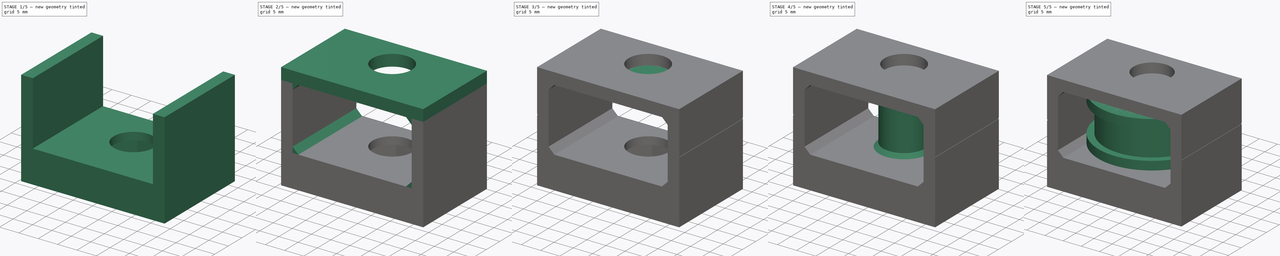
[diagram: build sequence overview — one tinted view per stage of 5, left to right]
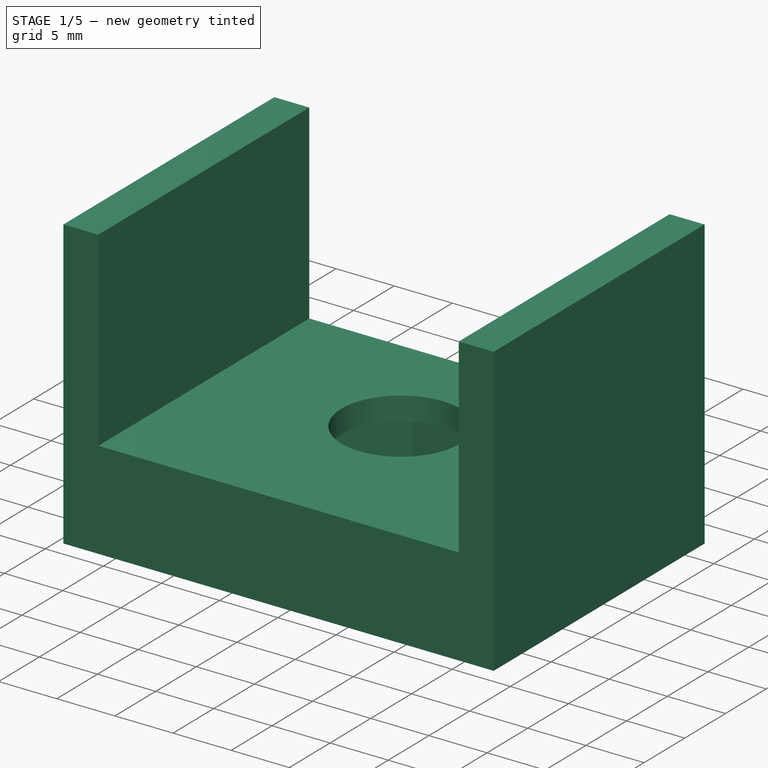
[diagram: stage 1 of 5 — iso view after this stage's code; geometry added in this stage tinted green]
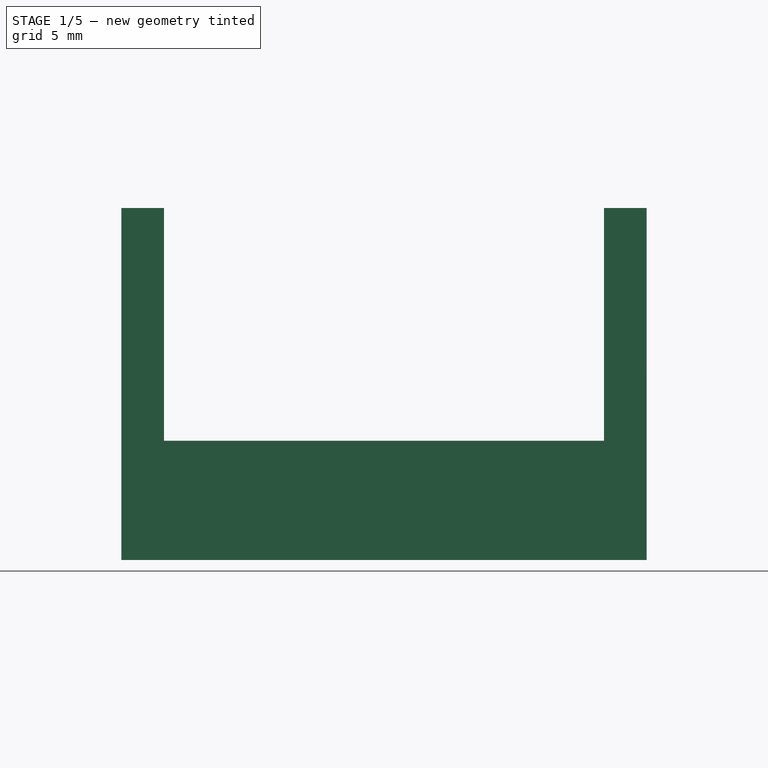
[diagram: stage 1 of 5 — front view after this stage's code; geometry added in this stage tinted green]
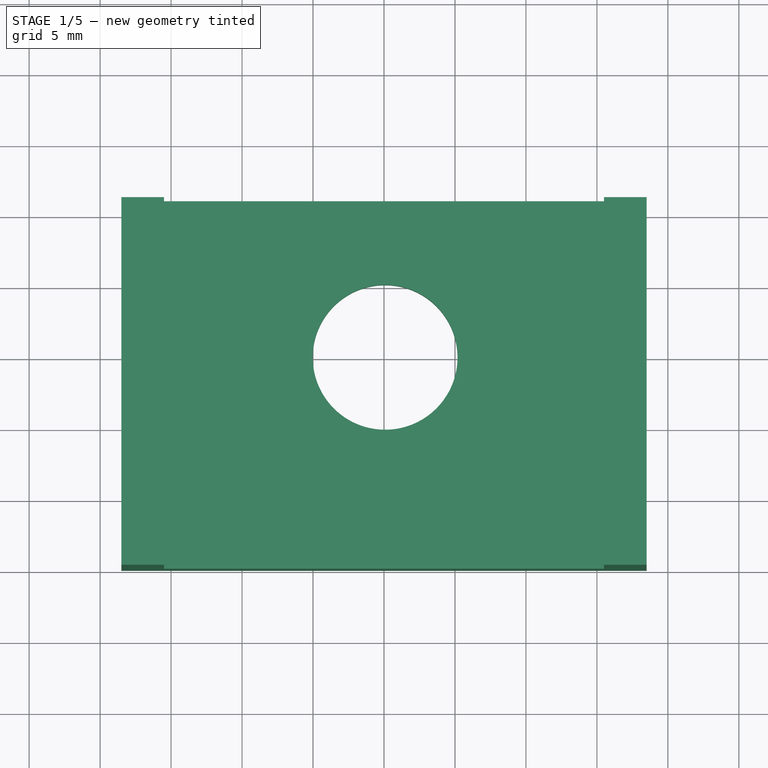
[diagram: stage 1 of 5 — top view after this stage's code; geometry added in this stage tinted green]
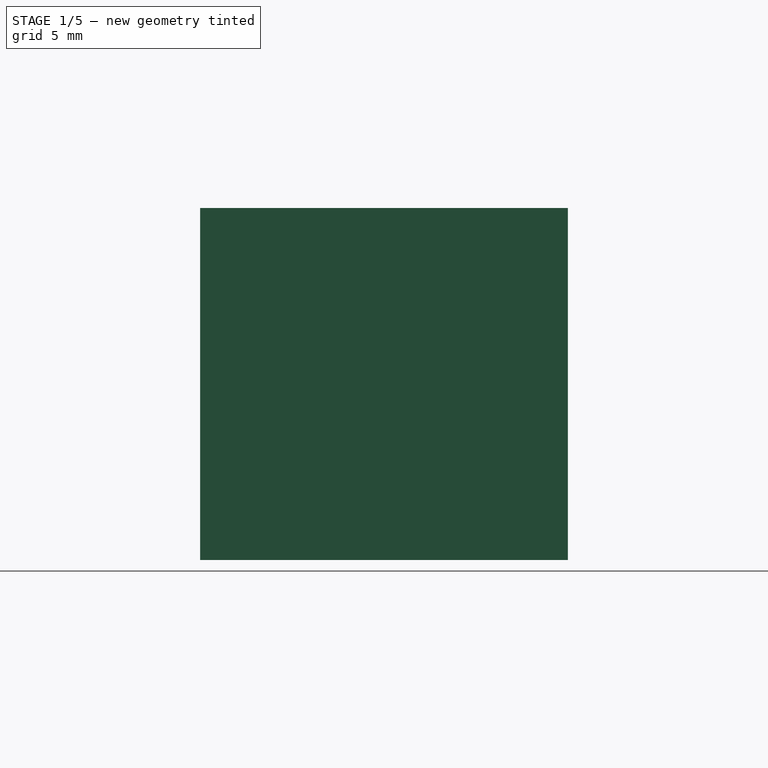
[diagram: stage 1 of 5 — right view after this stage's code; geometry added in this stage tinted green]
FCSTD DOCUMENT  (FreeCAD 0.15R4671 (Git))
Label: Halterung Schrittmotor v4 - Fuehrung
License: All rights reserved
LicenseURL: http://de.wikipedia.org/wiki/Alle_Rechte_vorbehalten
objects: Sketcher::SketchObject×12, PartDesign::Pad×6, PartDesign::Pocket×6, App::DocumentObjectGroup×5, Part::FeaturePython×5, Part::Feature×2, PartDesign::Chamfer×2
note: 45 computed .brp shape members not serialized (recipe doc carries the construction recipe); baked Part::Feature solids carry a one-line shape summary decoded from their .brp

FEATURE [App::DocumentObjectGroup] Gruppe004  label="Links"
  Group = -> [Part__Feature,Part__Feature001,M10_Unterlegscheibe_klein_01,import_01,import_,M10_Unterlegscheibe_klein_,Kugellager_6000_01]
FEATURE [App::DocumentObjectGroup] Gruppe002  label="Fuehrung Zahnriemen"
  Group = -> [Gruppe004]
FEATURE [App::DocumentObjectGroup] Gruppe  label="ext. Bauteile"
  Group = -> [Gruppe001,Gruppe002]
FEATURE [App::DocumentObjectGroup] Gruppe006  label="Aufbau"
FEATURE [Sketcher::SketchObject] Sketch
  sketch-geometry (4):
    g0: LineSegment StartX=-18.5 StartY=11 StartZ=0 EndX=18.5 EndY=11 EndZ=0
    g1: LineSegment StartX=18.5 StartY=11 StartZ=0 EndX=18.5 EndY=-14.9 EndZ=0
    g2: LineSegment StartX=18.5 StartY=-14.9 StartZ=0 EndX=-18.5 EndY=-14.9 EndZ=0
    g3: LineSegment StartX=-18.5 StartY=-14.9 StartZ=0 EndX=-18.5 EndY=11 EndZ=0
  constraints (12):
    c: Coincident(g0,g1)
    c: Coincident(g1,g2)
    c: Coincident(g2,g3)
    c: Coincident(g3,g0)
    c: Horizontal(g0)
    c: Horizontal(g2)
    c: Vertical(g1)
    c: Vertical(g3)
    c: Symmetric(g1,g2,g-2)
    c: DistanceY(g0) = 11
    c: DistanceX(g0) = 18.5
    c: DistanceY(g1) = -14.9
FEATURE [PartDesign::Pad] Pad
  Length = 8.4
  Length2 = 100
  Sketch = -> Sketch
  Type = 0
FEATURE [Sketcher::SketchObject] Sketch001
  Placement = pos=(0,0,0) rot=(1,0,0;3.14159rad)
  Support = -> Pad [Face5]
  sketch-geometry (7):
    g0: LineSegment StartX=9.84382 StartY=0 StartZ=0 EndX=4.92191 EndY=8.525 EndZ=0
    g1: LineSegment StartX=4.92191 StartY=8.525 StartZ=0 EndX=-4.92191 EndY=8.525 EndZ=0
    g2: LineSegment StartX=-4.92191 StartY=8.525 StartZ=0 EndX=-9.84382 EndY=0 EndZ=0
    g3: LineSegment StartX=-9.84382 StartY=0 StartZ=0 EndX=-4.92191 EndY=-8.525 EndZ=0
    g4: LineSegment StartX=-4.92191 StartY=-8.525 StartZ=0 EndX=4.92191 EndY=-8.525 EndZ=0
    g5: LineSegment StartX=4.92191 StartY=-8.525 StartZ=0 EndX=9.84382 EndY=0 EndZ=0
    g6: Circle [constr] CenterX=0 CenterY=0 CenterZ=0 NormalX=0 NormalY=0 NormalZ=1 Radius=9.84382
  constraints (16):
    c: Coincident(g0,g1)
    c: Coincident(g1,g2)
    c: Coincident(g2,g3)
    c: Coincident(g3,g4)
    c: Coincident(g4,g5)
    c: Coincident(g5,g0)
    c: Equal(g0, g1-g5) x5
    c: PointOnObject(g0,g6)
    c: PointOnObject(g1,g6)
    c: PointOnObject(g2,g6)
    c: PointOnObject(g3,g6)
    c: PointOnObject(g4,g6)
    c: PointOnObject(g5,g6)
    c: Horizontal(g4)
    c: Coincident(g6,g-1)
    c: Distance(g0,g4) = 17.05
FEATURE [PartDesign::Pocket] Pocket
  Length = 6.4
  Sketch = -> Sketch001
  Type = 0
FEATURE [Sketcher::SketchObject] Sketch002
  Placement = pos=(0,0,6.4) rot=(1,0,0;3.14159rad)
  Support = -> Pocket [Face13]
  sketch-geometry (1):
    g0: Circle CenterX=0.078516 CenterY=0 CenterZ=0 NormalX=0 NormalY=0 NormalZ=1 Radius=5.1
  constraints (2):
    c: PointOnObject(g0,g-1)
    c: Radius(g0) = 5.1
FEATURE [PartDesign::Pocket] Pocket001
  Length = 5
  Sketch = -> Sketch002
  Type = 1
FEATURE [Sketcher::SketchObject] Sketch004
  ExternalGeometry = -> [Pocket001]
  Placement = pos=(0,0,8.4) rot=(0,0,1;0rad)
  Support = -> Pocket001 [Face5]
  sketch-geometry (8):
    g0: LineSegment StartX=-18.5 StartY=11 StartZ=0 EndX=-15.5 EndY=11 EndZ=0
    g1: LineSegment StartX=-15.5 StartY=11 StartZ=0 EndX=-15.5 EndY=-14.9 EndZ=0
    g2: LineSegment StartX=-15.5 StartY=-14.9 StartZ=0 EndX=-18.5 EndY=-14.9 EndZ=0
    g3: LineSegment StartX=-18.5 StartY=-14.9 StartZ=0 EndX=-18.5 EndY=11 EndZ=0
    g4: LineSegment StartX=18.5 StartY=11 StartZ=0 EndX=15.5 EndY=11 EndZ=0
    g5: LineSegment StartX=15.5 StartY=11 StartZ=0 EndX=15.5 EndY=-14.9 EndZ=0
    g6: LineSegment StartX=15.5 StartY=-14.9 StartZ=0 EndX=18.5 EndY=-14.9 EndZ=0
    g7: LineSegment StartX=18.5 StartY=-14.9 StartZ=0 EndX=18.5 EndY=11 EndZ=0
  constraints (22):
    c: Coincident(g0,g1)
    c: Coincident(g1,g2)
    c: Coincident(g2,g3)
    c: Coincident(g3,g0)
    c: Horizontal(g0)
    c: Horizontal(g2)
    c: Vertical(g1)
    c: Vertical(g3)
    c: Coincident(g0,g-4)
    c: Coincident(g4,g5)
    c: Coincident(g5,g6)
    c: Coincident(g6,g7)
    c: Coincident(g7,g4)
    c: Horizontal(g4)
    c: Horizontal(g6)
    c: Vertical(g5)
    c: Vertical(g7)
    c: Coincident(g4,g-3)
    c: Equal(g6,g2)
    c: DistanceX(g6) = 3
    c: Coincident(g-3,g6)
    c: Coincident(g2,g-4)
FEATURE [PartDesign::Pad] Pad001
  Length = 16.4
  Length2 = 100
  Sketch = -> Sketch004
  Type = 0
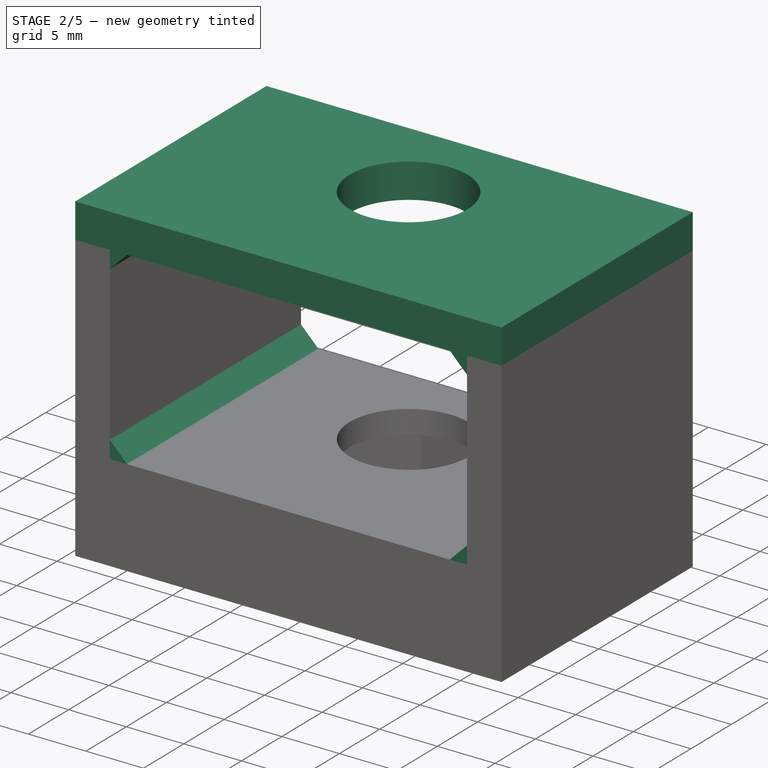
[diagram: stage 2 of 5 — iso view after this stage's code; geometry added in this stage tinted green]
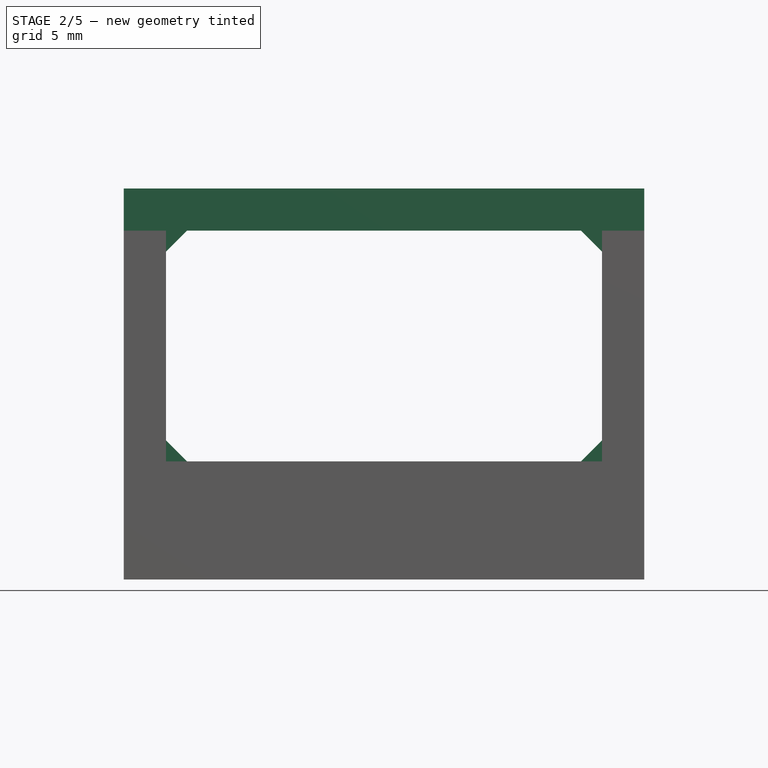
[diagram: stage 2 of 5 — front view after this stage's code; geometry added in this stage tinted green]
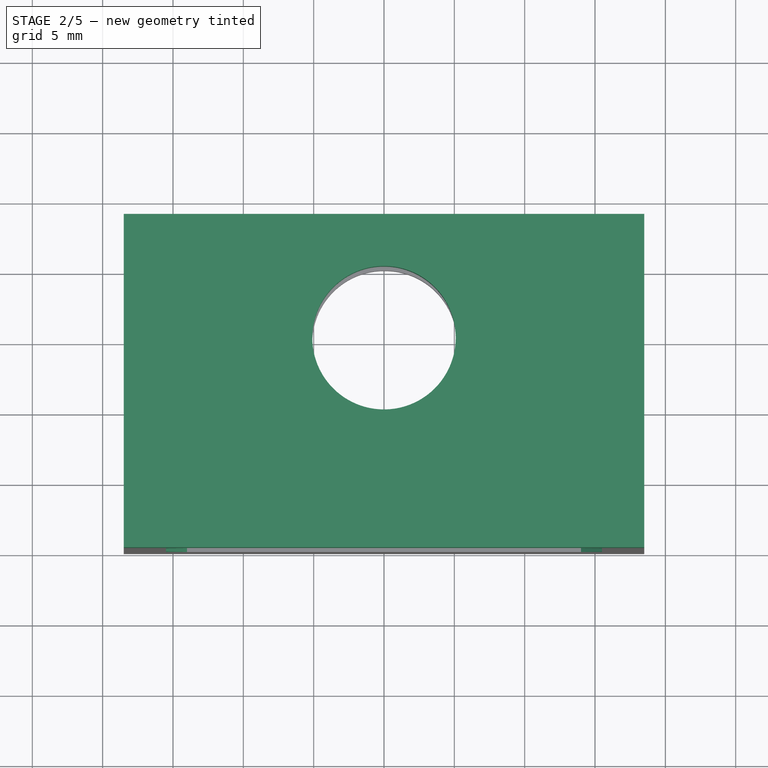
[diagram: stage 2 of 5 — top view after this stage's code; geometry added in this stage tinted green]
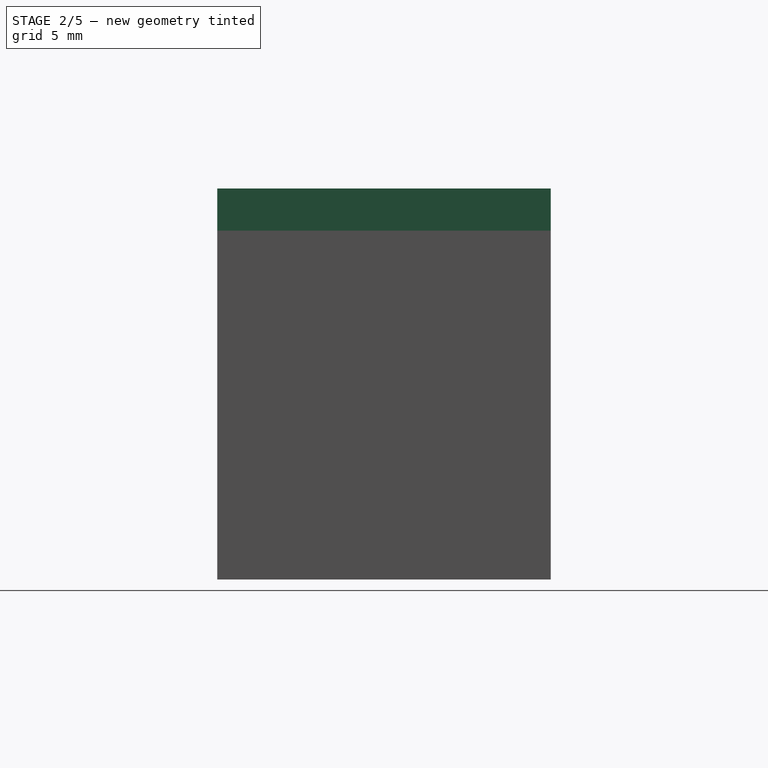
[diagram: stage 2 of 5 — right view after this stage's code; geometry added in this stage tinted green]
FEATURE [Sketcher::SketchObject] Sketch005
  ExternalGeometry = -> [Pad001]
  Placement = pos=(0,0,24.8) rot=(0,0,1;0rad)
  Support = -> Pad001 [Face20]
  sketch-geometry (4):
    g0: LineSegment StartX=-18.5 StartY=11 StartZ=0 EndX=18.5 EndY=11 EndZ=0
    g1: LineSegment StartX=18.5 StartY=11 StartZ=0 EndX=18.5 EndY=-14.9 EndZ=0
    g2: LineSegment StartX=18.5 StartY=-14.9 StartZ=0 EndX=-18.5 EndY=-14.9 EndZ=0
    g3: LineSegment StartX=-18.5 StartY=-14.9 StartZ=0 EndX=-18.5 EndY=11 EndZ=0
  constraints (10):
    c: Coincident(g0,g1)
    c: Coincident(g1,g2)
    c: Coincident(g2,g3)
    c: Coincident(g3,g0)
    c: Horizontal(g0)
    c: Horizontal(g2)
    c: Vertical(g1)
    c: Vertical(g3)
    c: Coincident(g0,g-4)
    c: Coincident(g1,g-3)
FEATURE [PartDesign::Pad] Pad002
  Length = 3
  Length2 = 100
  Sketch = -> Sketch005
  Type = 0
FEATURE [Sketcher::SketchObject] Sketch006
  ExternalGeometry = -> [Pad002]
  Placement = pos=(0,0,6.4) rot=(1,0,0;3.14159rad)
  Support = -> Pad002 [Face19]
  sketch-geometry (1):
    g0: Circle CenterX=0 CenterY=0 CenterZ=0 NormalX=0 NormalY=0 NormalZ=1 Radius=5.1
  constraints (2):
    c: Coincident(g0,g-1)
    c: Equal(g0,g-3)
FEATURE [PartDesign::Pocket] Pocket002
  Length = 5
  Sketch = -> Sketch006
  Type = 1
FEATURE [PartDesign::Chamfer] Chamfer
  Base = -> Pocket002 [Edge38,Edge61,Edge62,Edge39]
  Size = 1.5
FEATURE [Sketcher::SketchObject] Sketch007
  ExternalGeometry = -> [Chamfer]
  Placement = pos=(0,11,0) rot=(0,0.707107,0.707107;3.14159rad)
  Support = -> Chamfer [Face1]
  sketch-geometry (4):
    g0: LineSegment StartX=-18.5 StartY=27.8 StartZ=0 EndX=18.5 EndY=27.8 EndZ=0
    g1: LineSegment StartX=18.5 StartY=27.8 StartZ=0 EndX=18.5 EndY=0 EndZ=0
    g2: LineSegment StartX=18.5 StartY=0 StartZ=0 EndX=-18.5 EndY=0 EndZ=0
    g3: LineSegment StartX=-18.5 StartY=0 StartZ=0 EndX=-18.5 EndY=27.8 EndZ=0
  constraints (10):
    c: Coincident(g0,g1)
    c: Coincident(g1,g2)
    c: Coincident(g2,g3)
    c: Coincident(g3,g0)
    c: Horizontal(g0)
    c: Horizontal(g2)
    c: Vertical(g1)
    c: Vertical(g3)
    c: Coincident(g0,g-3)
    c: Coincident(g1,g-4)
FEATURE [PartDesign::Pocket] Pocket003
  Length = 2.2
  Sketch = -> Sketch007
  Type = 0
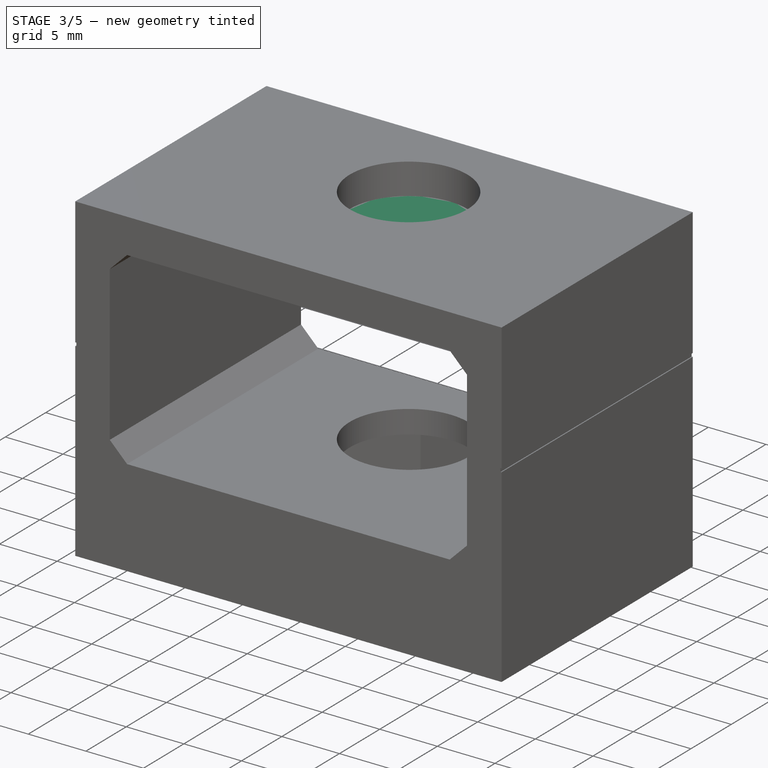
[diagram: stage 3 of 5 — iso view after this stage's code; geometry added in this stage tinted green]
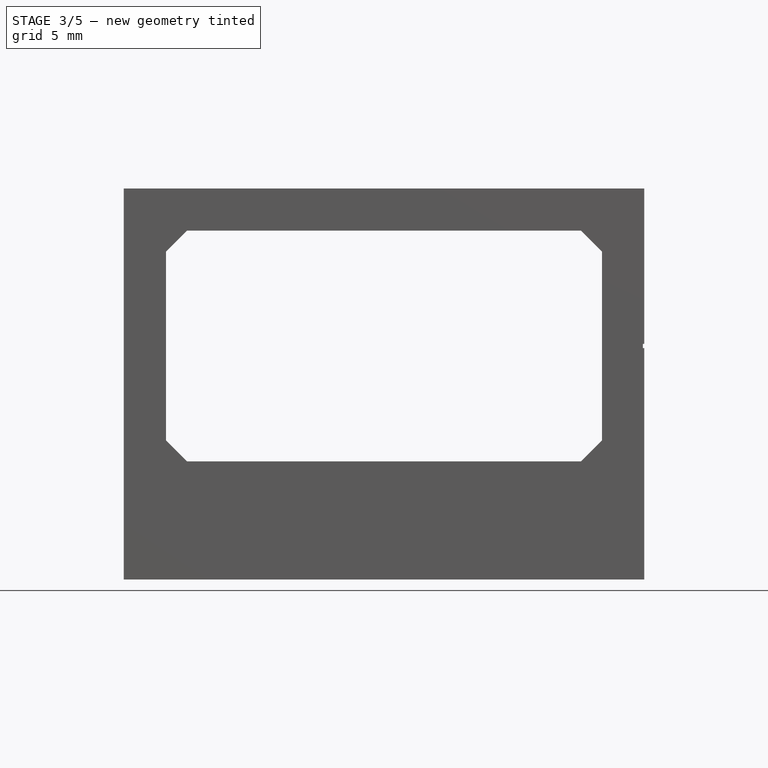
[diagram: stage 3 of 5 — front view after this stage's code; geometry added in this stage tinted green]
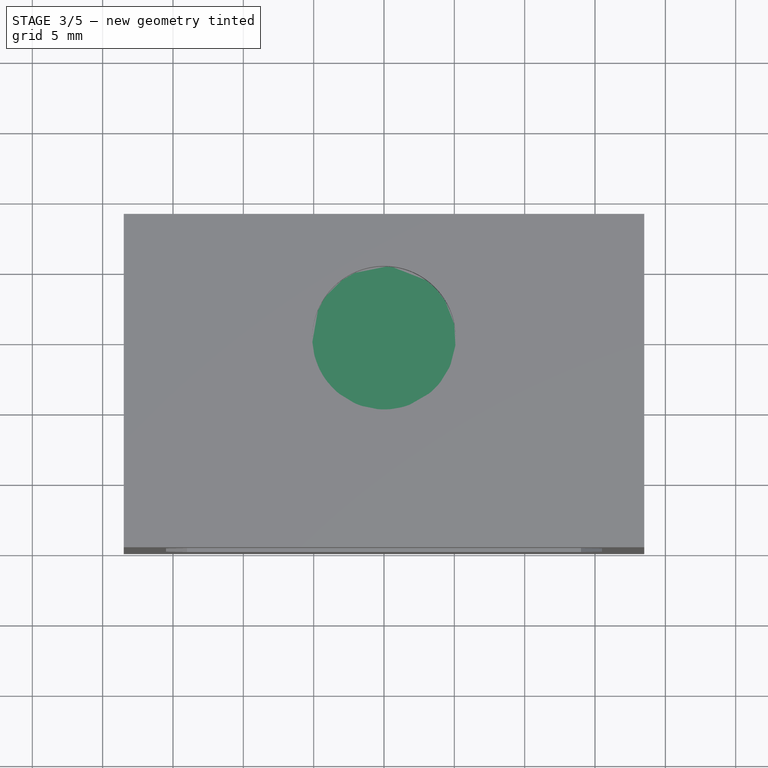
[diagram: stage 3 of 5 — top view after this stage's code; geometry added in this stage tinted green]
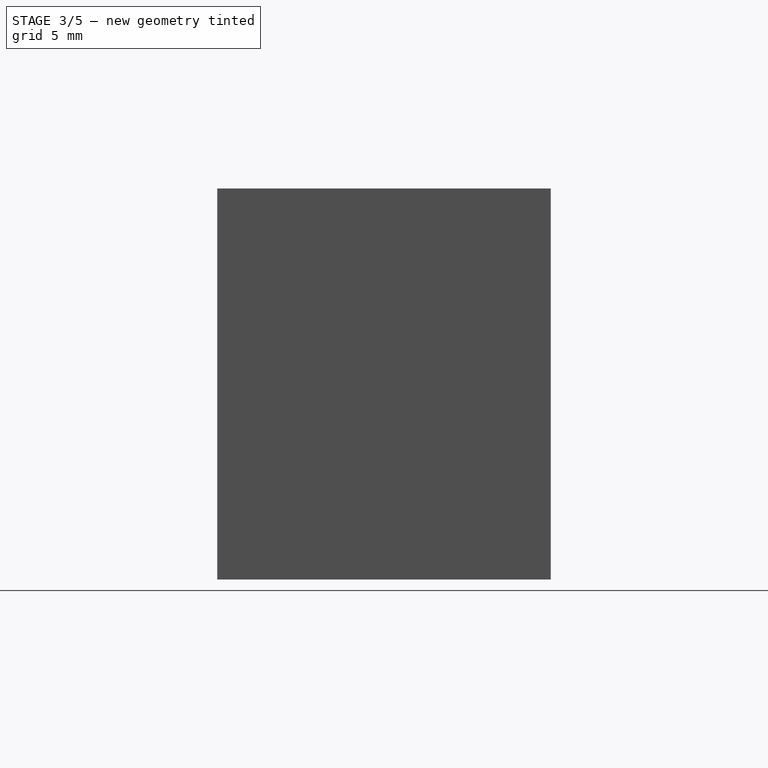
[diagram: stage 3 of 5 — right view after this stage's code; geometry added in this stage tinted green]
FEATURE [Sketcher::SketchObject] Sketch008
  ExternalGeometry = -> [Pocket003]
  Placement = pos=(18.5,0,0) rot=(0.57735,0.57735,0.57735;2.0944rad)
  Support = -> Pocket003 [Face12]
  sketch-geometry (5):
    g0: LineSegment [constr] StartX=-14.9 StartY=16.6 StartZ=0 EndX=8.8 EndY=16.6 EndZ=0
    g1: LineSegment StartX=-14.9 StartY=16.75 StartZ=0 EndX=8.8 EndY=16.75 EndZ=0
    g2: LineSegment StartX=8.8 StartY=16.75 StartZ=0 EndX=8.8 EndY=16.45 EndZ=0
    g3: LineSegment StartX=8.8 StartY=16.45 StartZ=0 EndX=-14.9 EndY=16.45 EndZ=0
    g4: LineSegment StartX=-14.9 StartY=16.45 StartZ=0 EndX=-14.9 EndY=16.75 EndZ=0
  constraints (15):
    c: PointOnObject(g0,g-3)
    c: PointOnObject(g0,g-4)
    c: Symmetric(g-4,g-4,g0)
    c: Coincident(g1,g2)
    c: Coincident(g2,g3)
    c: Coincident(g3,g4)
    c: Coincident(g4,g1)
    c: Horizontal(g1)
    c: Horizontal(g3)
    c: Vertical(g2)
    c: Vertical(g4)
    c: PointOnObject(g1,g-3)
    c: PointOnObject(g2,g-4)
    c: Symmetric(g1,g2,g0)
    c: DistanceY(g2) = -0.3
FEATURE [PartDesign::Pocket] Pocket004
  Length = 0.1
  Sketch = -> Sketch008
  Type = 0
FEATURE [Sketcher::SketchObject] Sketch009
  ExternalGeometry = -> [Pocket004]
  Placement = pos=(-18.5,0,0) rot=(0.57735,-0.57735,-0.57735;2.0944rad)
  Support = -> Pocket004 [Face11]
  sketch-geometry (5):
    g0: LineSegment StartX=-8.5 StartY=16.75 StartZ=0 EndX=14.9 EndY=16.75 EndZ=0
    g1: LineSegment StartX=14.9 StartY=16.75 StartZ=0 EndX=14.9 EndY=16.45 EndZ=0
    g2: LineSegment StartX=14.9 StartY=16.45 StartZ=0 EndX=-8.5 EndY=16.45 EndZ=0
    g3: LineSegment StartX=-8.5 StartY=16.45 StartZ=0 EndX=-8.5 EndY=16.75 EndZ=0
    g4: LineSegment [constr] StartX=-8.5 StartY=16.6 StartZ=0 EndX=14.9 EndY=16.6 EndZ=0
  constraints (12):
    c: Coincident(g0,g1)
    c: Coincident(g1,g2)
    c: Coincident(g2,g3)
    c: Coincident(g3,g0)
    c: Horizontal(g0)
    c: Horizontal(g2)
    c: Vertical(g1)
    c: Vertical(g3)
    c: PointOnObject(g4,g3)
    c: PointOnObject(g4,g1)
    c: Symmetric(g0,g1,g4)
    c: DistanceY(g1) = -0.3
FEATURE [PartDesign::Pocket] Pocket005  label="Fuehrung"
  Length = 0.1
  Sketch = -> Sketch009
  Type = 0
FEATURE [Sketcher::SketchObject] Sketch010
  ExternalGeometry = -> [Pocket005]
  Placement = pos=(0,0,24.8) rot=(1,0,0;3.14159rad)
  Support = -> Pocket005 [Face25]
  sketch-geometry (1):
    g0: Circle CenterX=0 CenterY=0 CenterZ=0 NormalX=0 NormalY=0 NormalZ=1 Radius=5.1
  constraints (2):
    c: Coincident(g0,g-1)
    c: Equal(g0,g-3)
FEATURE [PartDesign::Pad] Pad003
  Length = 0.3
  Length2 = 100
  Reversed = true
  Sketch = -> Sketch010
  Type = 0
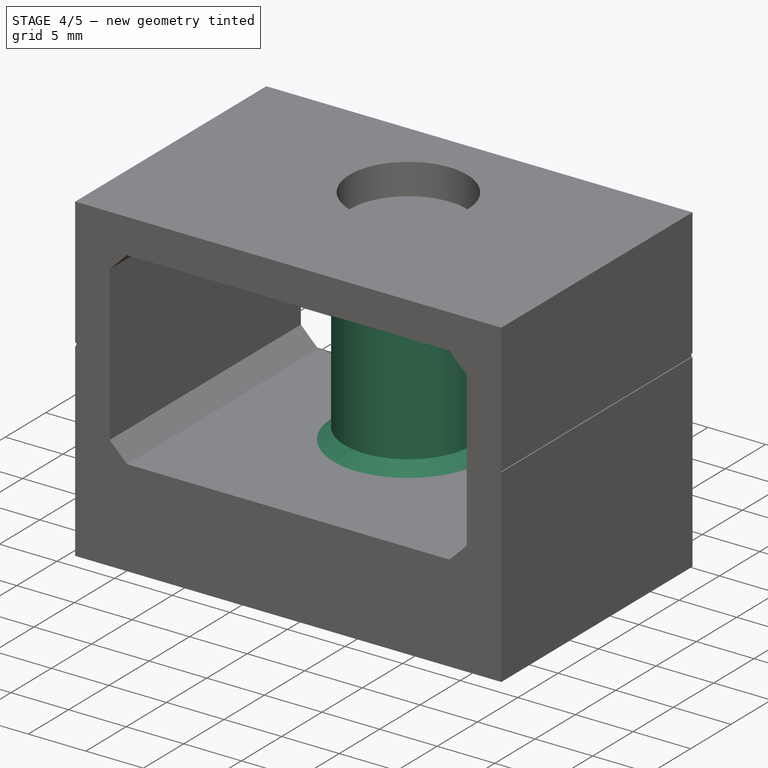
[diagram: stage 4 of 5 — iso view after this stage's code; geometry added in this stage tinted green]
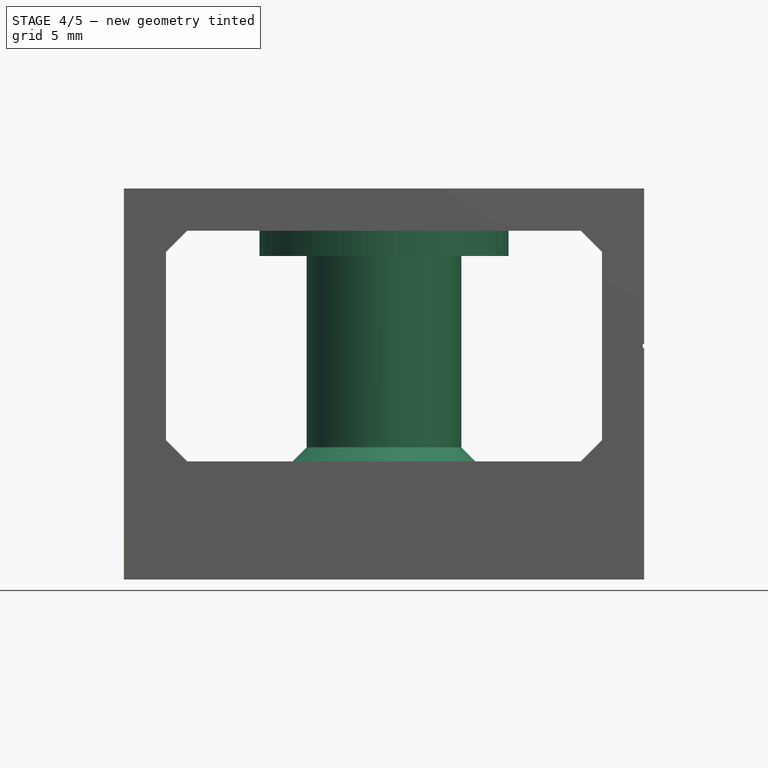
[diagram: stage 4 of 5 — front view after this stage's code; geometry added in this stage tinted green]
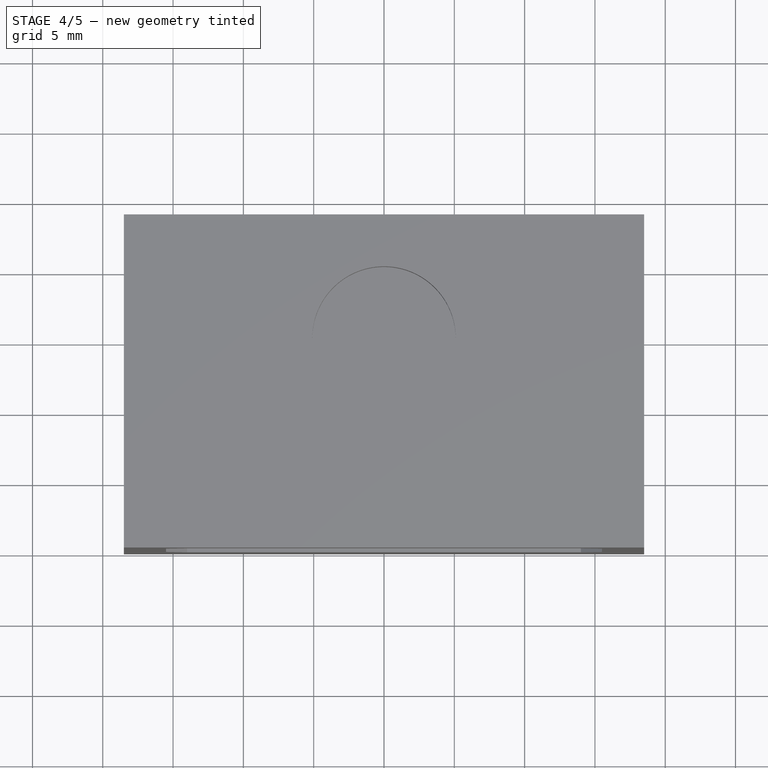
[diagram: stage 4 of 5 — top view after this stage's code; geometry added in this stage tinted green]
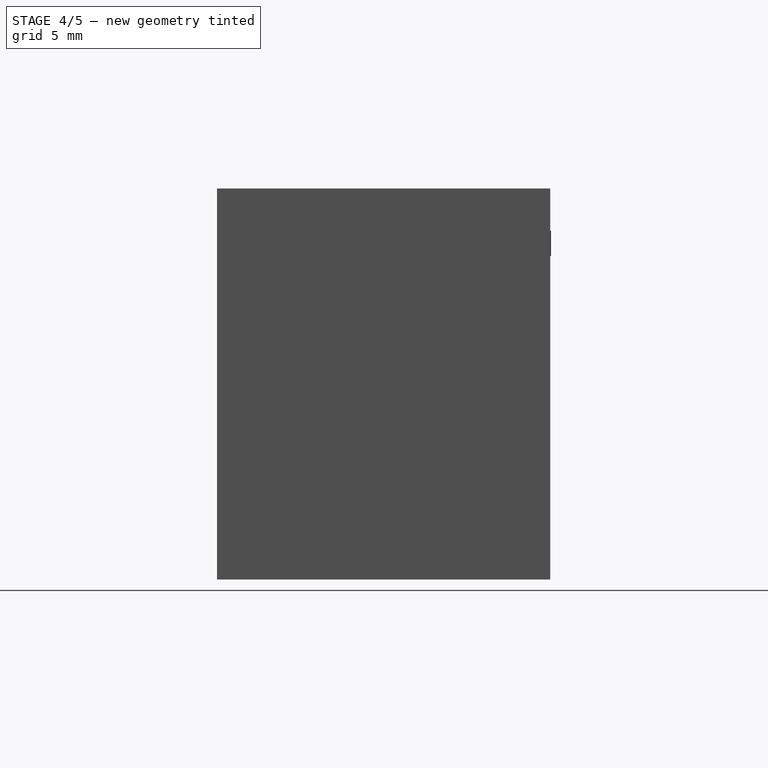
[diagram: stage 4 of 5 — right view after this stage's code; geometry added in this stage tinted green]
FEATURE [Part::FeaturePython] M10_Unterlegscheibe_klein_  # a2plus imported part (geometry in sourceFile) (typed FeaturePython)
  Placement = pos=(0,0,23) rot=(0,0,1;0rad)
  fixedPosition = false
  sourceFile = <userpath>/Documents/WORK/M10 Unterlegscheibe klein.FCStd
  timeLastImport = 1.44881e+09
  updateColors = true
FEATURE [Sketcher::SketchObject] Sketch011
  Placement = pos=(0,0,24.8) rot=(1,0,0;3.14159rad)
  Support = -> Pad003 [Face40]
  sketch-geometry (2):
    g0: Circle CenterX=0 CenterY=0 CenterZ=0 NormalX=0 NormalY=0 NormalZ=1 Radius=5.5
    g1: Circle CenterX=0 CenterY=0 CenterZ=0 NormalX=0 NormalY=0 NormalZ=1 Radius=5.1
  constraints (4):
    c: Coincident(g0,g-1)
    c: Coincident(g-1,g1)
    c: Radius(g1) = 5.1
    c: Radius(g0) = 5.5
FEATURE [PartDesign::Pad] Pad004
  Length = 16.4
  Length2 = 100
  Sketch = -> Sketch011
  Type = 0
FEATURE [Sketcher::SketchObject] Sketch012
  Placement = pos=(0,0,6.4) rot=(1,0,0;3.14159rad)
  Support = -> Pad004 [Face39]
  sketch-geometry (1):
    g0: Circle CenterX=0 CenterY=0 CenterZ=0 NormalX=0 NormalY=0 NormalZ=1 Radius=5.3
  constraints (2):
    c: Coincident(g0,g-1)
    c: Radius(g0) = 5.3
FEATURE [PartDesign::Pad] Pad005
  Length = 0.3
  Length2 = 100
  Reversed = true
  Sketch = -> Sketch012
  Type = 0
FEATURE [PartDesign::Chamfer] Chamfer001
  Base = -> Pad005 [Edge59,Edge73]
  Size = 1
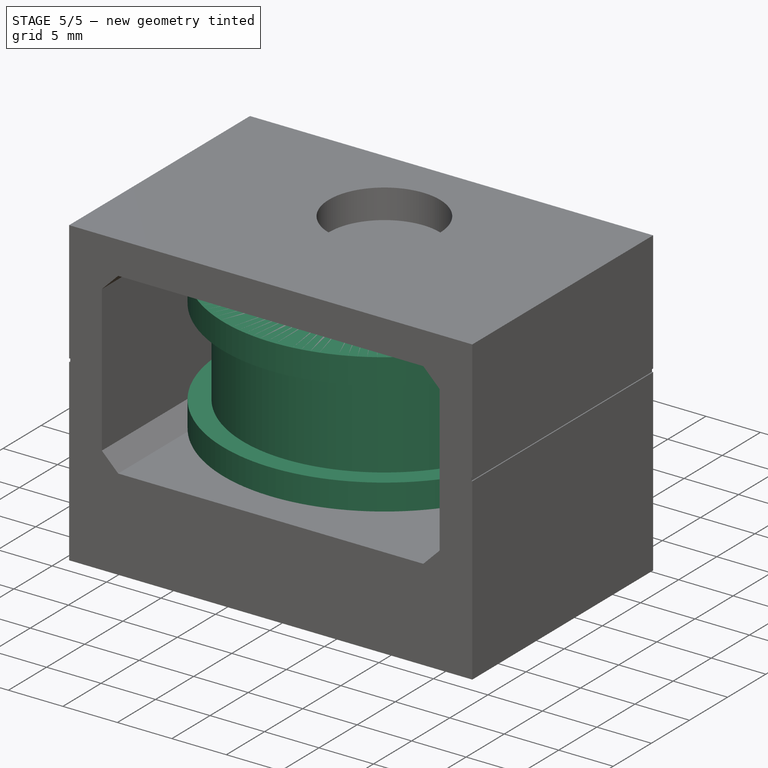
[diagram: stage 5 of 5 — iso view after this stage's code; geometry added in this stage tinted green]
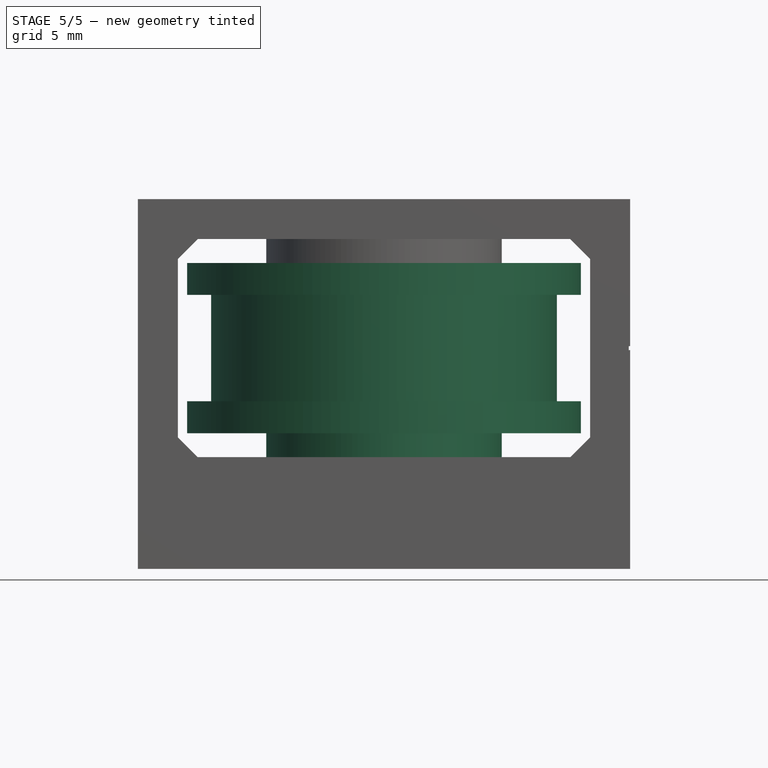
[diagram: stage 5 of 5 — front view after this stage's code; geometry added in this stage tinted green]
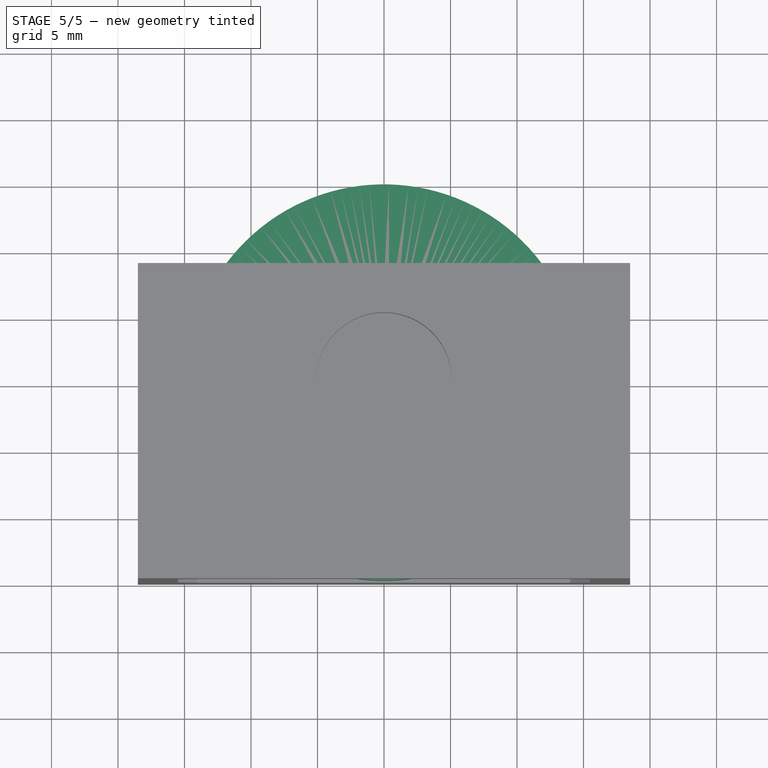
[diagram: stage 5 of 5 — top view after this stage's code; geometry added in this stage tinted green]
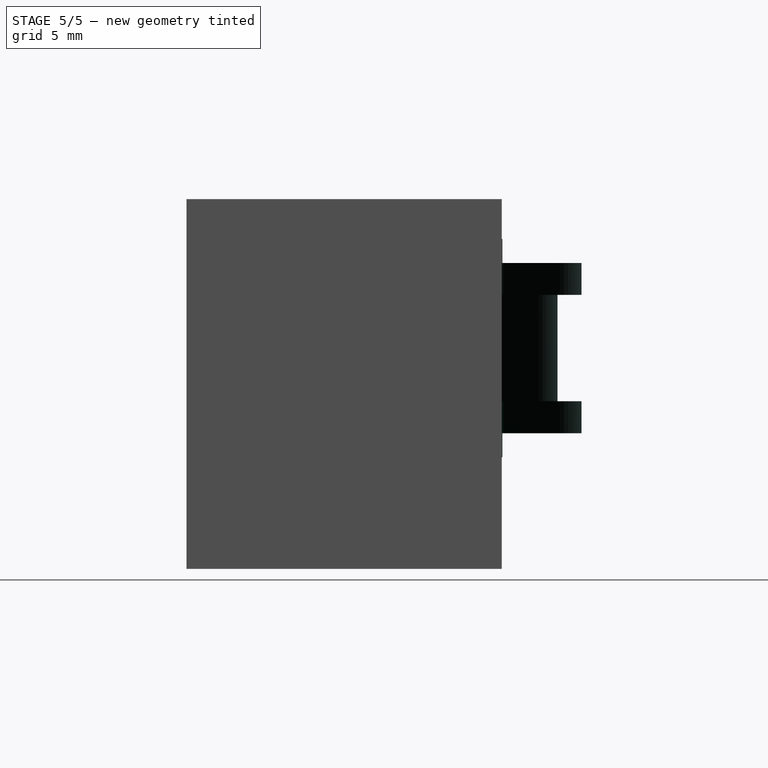
[diagram: stage 5 of 5 — right view after this stage's code; geometry added in this stage tinted green]
FEATURE [App::DocumentObjectGroup] Gruppe001  label="Verschraubung"
FEATURE [Part::Feature] Part__Feature  label="ISO4033-M10_"
  Placement = pos=(0,0,27.8) rot=(0,0,1;0rad)
  shape: bbox 18.48 x 18.48 x 9.3 mm, 25 faces (baked)
FEATURE [Part::Feature] Part__Feature001  label="ISO4017-M10x35_"
  Placement = pos=(0,0,6.4) rot=(1,0,0;3.14159rad)
  shape: bbox 18.48 x 18.48 x 41.4 mm, 22 faces (baked)
FEATURE [Part::FeaturePython] Kugellager_6000_01  # a2plus imported part (geometry in sourceFile) (typed FeaturePython)
  Placement = pos=(0,0,12.6) rot=(0,0,1;0rad)
  fixedPosition = true
  sourceFile = <userpath>/Documents/WORK/Kugellager_6000.FCStd
  timeLastImport = 1447786176
  updateColors = true
FEATURE [Part::FeaturePython] import_01  label="M10 Unterlegscheibe groß_01"  # a2plus imported part (geometry in sourceFile) (typed FeaturePython)
  Placement = pos=(0,0,10.2) rot=(0,0,1;0rad)
  fixedPosition = false
  sourceFile = <userpath>/Documents/WORK/M10 Unterlegscheibe groß.FCStd
  timeLastImport = 1.44881e+09
  updateColors = true
FEATURE [Part::FeaturePython] M10_Unterlegscheibe_klein_01  # a2plus imported part (geometry in sourceFile) (typed FeaturePython)
  Placement = pos=(0,0,8.4) rot=(0,0,1;0rad)
  fixedPosition = false
  sourceFile = <userpath>/Documents/WORK/M10 Unterlegscheibe klein.FCStd
  timeLastImport = 1.44881e+09
  updateColors = true
FEATURE [Part::FeaturePython] import_  label="M10 Unterlegscheibe groß_002"  # a2plus imported part (geometry in sourceFile) (typed FeaturePython)
  Placement = pos=(0,0,20.6) rot=(0,0,1;0rad)
  fixedPosition = false
  sourceFile = <userpath>/Documents/WORK/M10 Unterlegscheibe groß.FCStd
  timeLastImport = 1.44881e+09
  updateColors = true
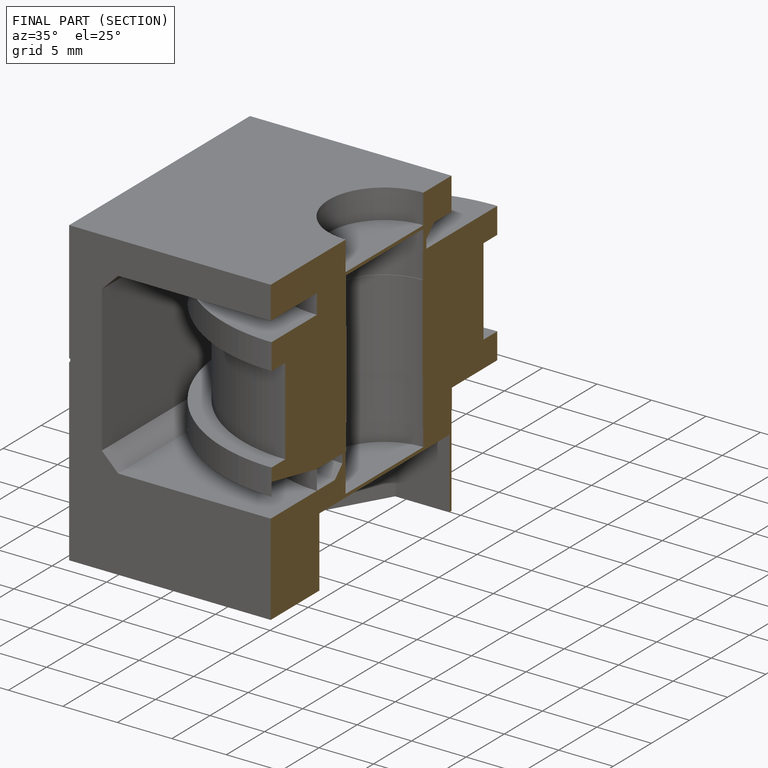
[diagram: finished part — half-section view (interior)]
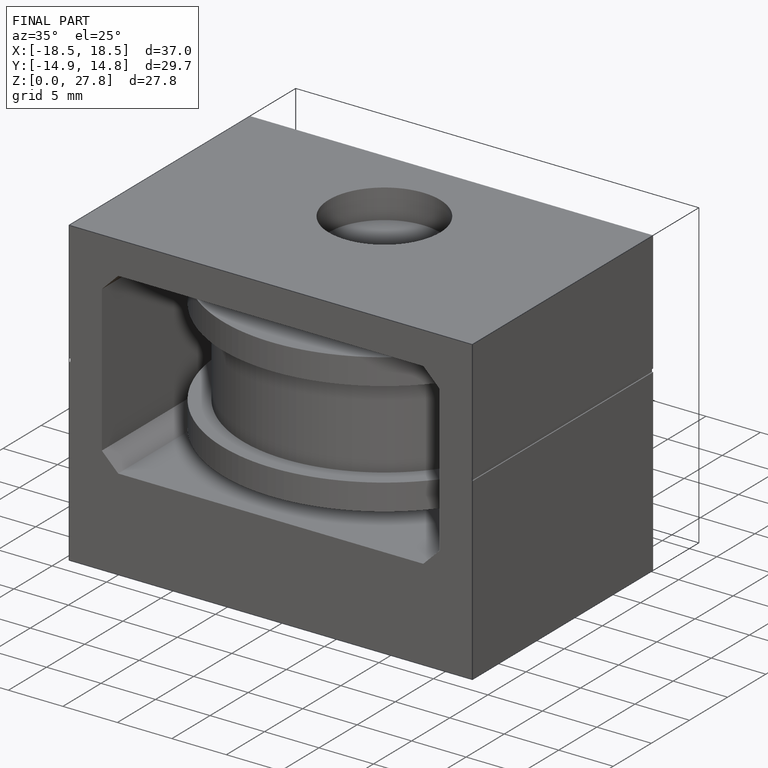
[diagram: finished part — iso view with bounding-box wireframe]
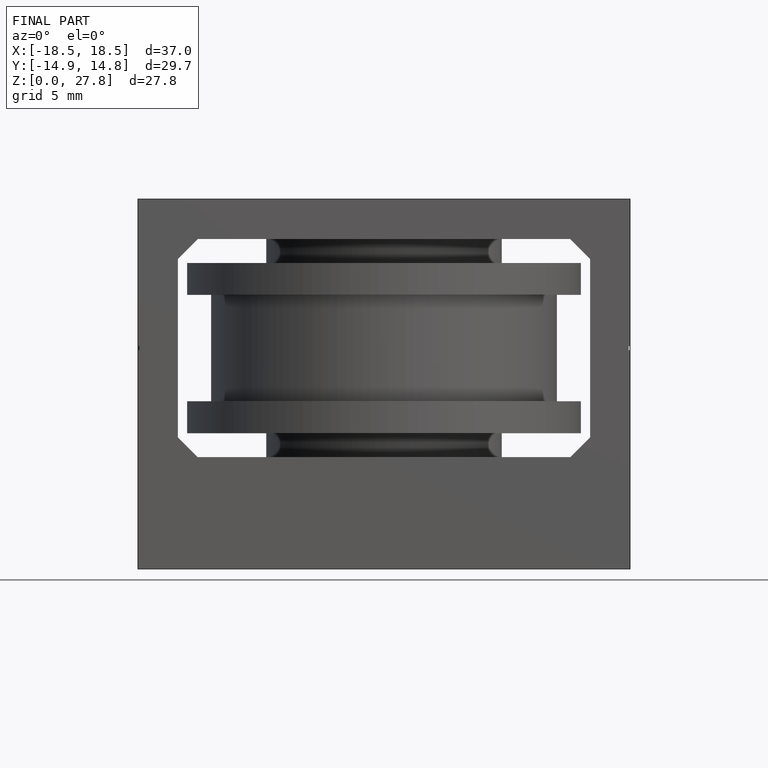
[diagram: finished part — front view with bounding-box wireframe]
